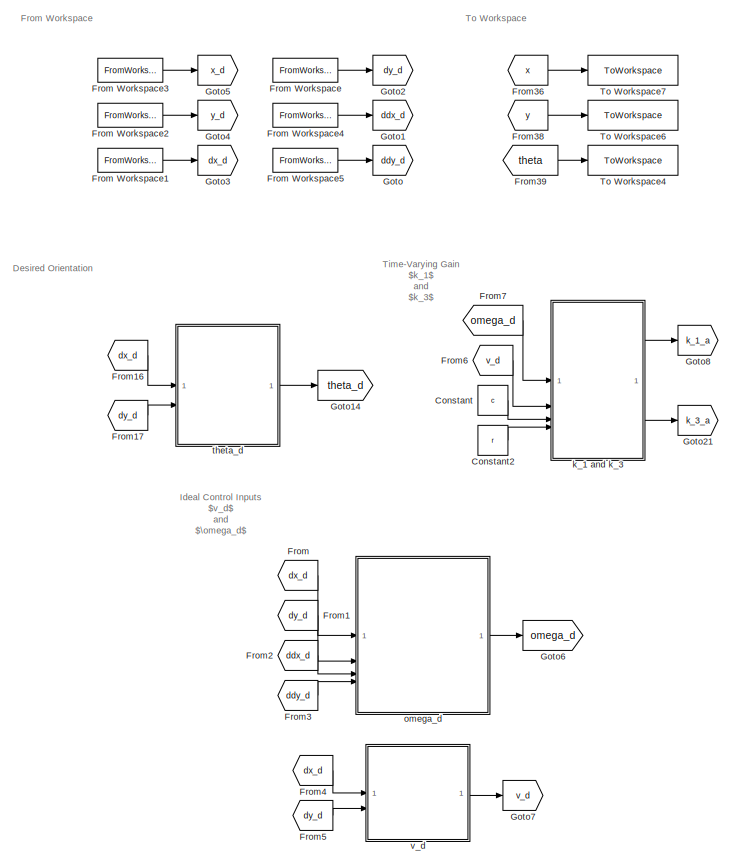
[diagram: root canvas - part 1/2, left side, full height]
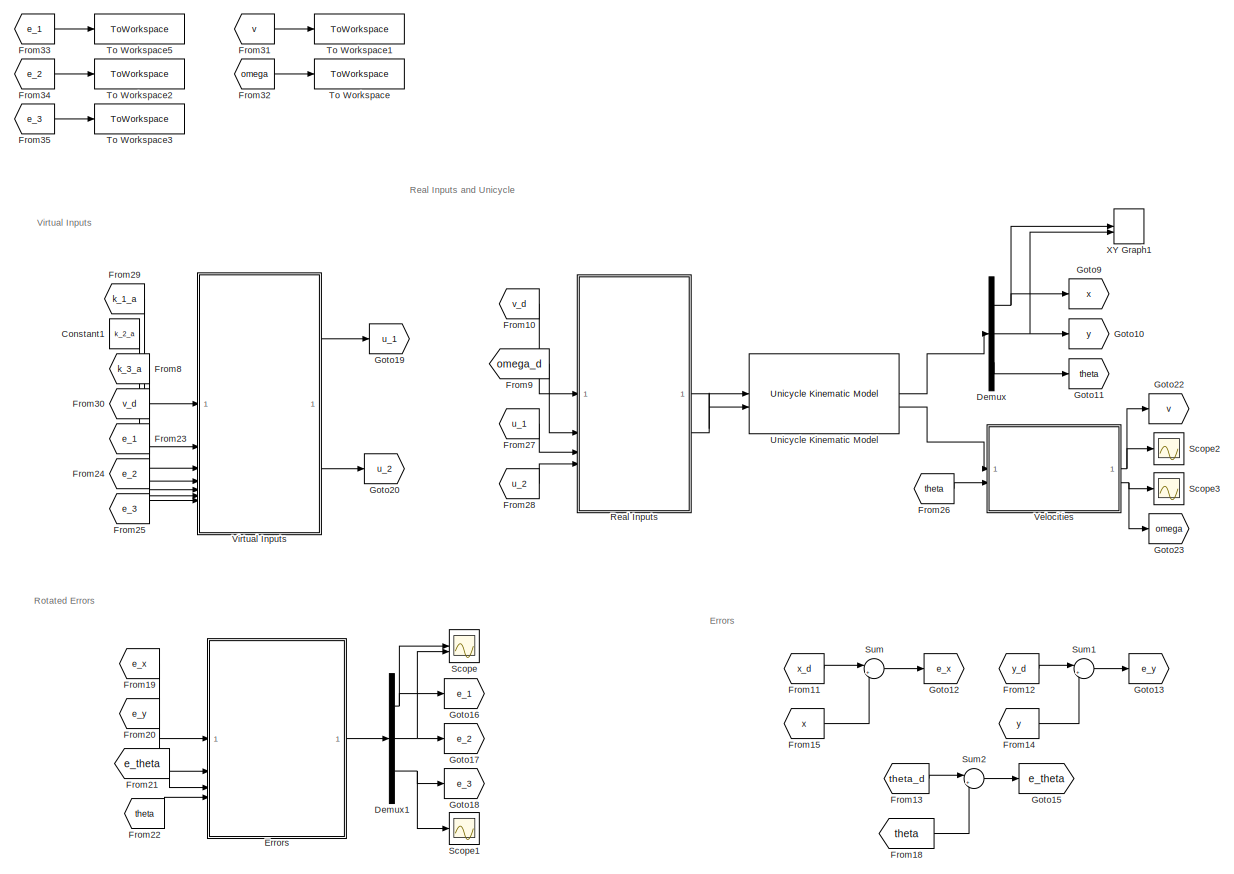
[diagram: root canvas - part 2/2, right side, full height]
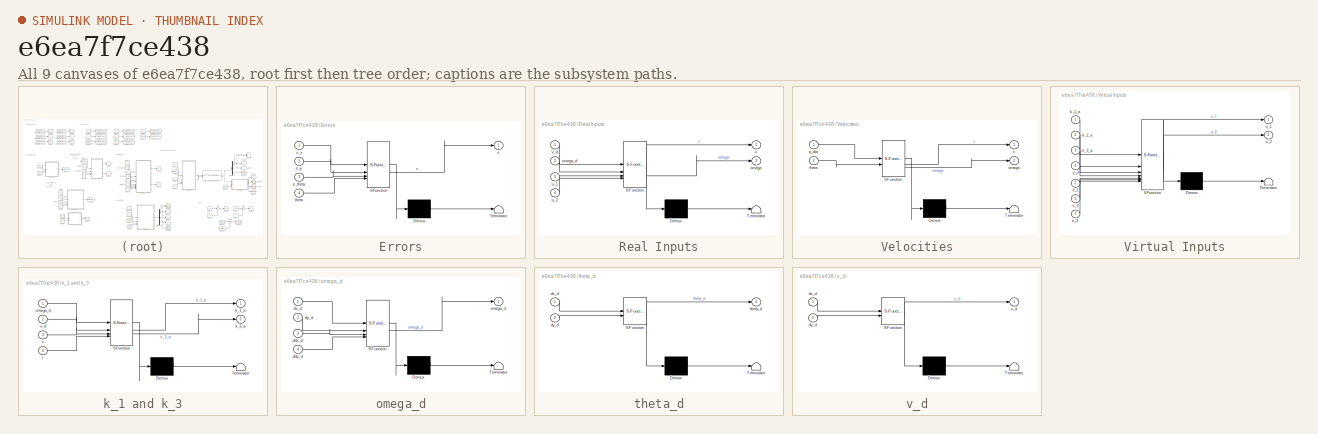
[diagram: thumbnail index - all 9 canvases of the model, root first then tree order]
MODEL slx_e6ea7f7ce438
KIND model
CONFIG AbsTol = auto
CONFIG EnableMultiTasking = off
CONFIG FixedStep = 0.001
CONFIG MaxStep = auto
CONFIG MinStep = auto
CONFIG RelTol = 1e-5
CONFIG SampleTimeConstraint = Unconstrained
CONFIG SolverName = ode23
CONFIG StartTime = 0.0
CONFIG StopTime = T
BLOCK [Constant] Constant
  Value = c
BLOCK [Constant] Constant1
  Value = k_2_a
BLOCK [Constant] Constant2
  Value = r
BLOCK [Demux] Demux
  Outputs = 3
BLOCK [Demux] Demux1
  Outputs = 3
BLOCK [SubSystem] Errors
  ErrorFcn = Stateflow.Translate.translate
  PermitHierarchicalResolution = ExplicitOnly
  SFBlockType = MATLAB Function
  TreatAsAtomicUnit = on
BLOCK [Demux] Errors/ Demux 
  Outputs = 1
BLOCK [S-Function] Errors/ SFunction 
  EnableBusSupport = on
  FunctionName = sf_sfun
  PortCounts = [4 2]
  SFcnIsStateOwnerBlock = off
  SFunctionDeploymentMode = off
  Tag = Stateflow S-Function 7
BLOCK [Terminator] Errors/ Terminator 
BLOCK [Outport] Errors/e
BLOCK [Inport] Errors/e_theta
  Port = 3
BLOCK [Inport] Errors/e_x
BLOCK [Inport] Errors/e_y
  Port = 2
BLOCK [Inport] Errors/theta
  Port = 4
BLOCK [From] From
  GotoTag = dx_d
BLOCK [FromWorkspace] From Workspace
  VariableName = dy_d
BLOCK [FromWorkspace] From Workspace1
  VariableName = dx_d
BLOCK [FromWorkspace] From Workspace2
  VariableName = y_d
BLOCK [FromWorkspace] From Workspace3
  VariableName = x_d
BLOCK [FromWorkspace] From Workspace4
  VariableName = ddx_d
BLOCK [FromWorkspace] From Workspace5
  VariableName = ddy_d
BLOCK [From] From1
  GotoTag = dy_d
BLOCK [From] From10
  GotoTag = v_d
BLOCK [From] From11
  GotoTag = x_d
BLOCK [From] From12
  GotoTag = y_d
BLOCK [From] From13
  GotoTag = theta_d
BLOCK [From] From14
  GotoTag = y
BLOCK [From] From15
  GotoTag = x
BLOCK [From] From16
  GotoTag = dx_d
BLOCK [From] From17
  GotoTag = dy_d
BLOCK [From] From18
  GotoTag = theta
BLOCK [From] From19
  GotoTag = e_x
BLOCK [From] From2
  GotoTag = ddx_d
BLOCK [From] From20
  GotoTag = e_y
BLOCK [From] From21
  GotoTag = e_theta
BLOCK [From] From22
  GotoTag = theta
BLOCK [From] From23
  GotoTag = e_1
BLOCK [From] From24
  GotoTag = e_2
BLOCK [From] From25
  GotoTag = e_3
BLOCK [From] From26
  GotoTag = theta
BLOCK [From] From27
  GotoTag = u_1
BLOCK [From] From28
  GotoTag = u_2
BLOCK [From] From29
  GotoTag = k_1_a
BLOCK [From] From3
  GotoTag = ddy_d
BLOCK [From] From30
  GotoTag = v_d
BLOCK [From] From31
  GotoTag = v
BLOCK [From] From32
  GotoTag = omega
BLOCK [From] From33
  GotoTag = e_1
BLOCK [From] From34
  GotoTag = e_2
BLOCK [From] From35
  GotoTag = e_3
BLOCK [From] From36
  GotoTag = x
BLOCK [From] From38
  GotoTag = y
BLOCK [From] From39
  GotoTag = theta
BLOCK [From] From4
  GotoTag = dx_d
BLOCK [From] From5
  GotoTag = dy_d
BLOCK [From] From6
  GotoTag = v_d
BLOCK [From] From7
  GotoTag = omega_d
BLOCK [From] From8
  GotoTag = k_3_a
BLOCK [From] From9
  GotoTag = omega_d
BLOCK [Goto] Goto
  GotoTag = ddy_d
BLOCK [Goto] Goto1
  GotoTag = ddx_d
BLOCK [Goto] Goto10
  GotoTag = y
BLOCK [Goto] Goto11
  GotoTag = theta
BLOCK [Goto] Goto12
  GotoTag = e_x
BLOCK [Goto] Goto13
  GotoTag = e_y
BLOCK [Goto] Goto14
  GotoTag = theta_d
BLOCK [Goto] Goto15
  GotoTag = e_theta
BLOCK [Goto] Goto16
  GotoTag = e_1
BLOCK [Goto] Goto17
  GotoTag = e_2
BLOCK [Goto] Goto18
  GotoTag = e_3
BLOCK [Goto] Goto19
  GotoTag = u_1
BLOCK [Goto] Goto2
  GotoTag = dy_d
BLOCK [Goto] Goto20
  GotoTag = u_2
BLOCK [Goto] Goto21
  GotoTag = k_3_a
BLOCK [Goto] Goto22
  GotoTag = v
BLOCK [Goto] Goto23
  GotoTag = omega
BLOCK [Goto] Goto3
  GotoTag = dx_d
BLOCK [Goto] Goto4
  GotoTag = y_d
BLOCK [Goto] Goto5
  GotoTag = x_d
BLOCK [Goto] Goto6
  GotoTag = omega_d
BLOCK [Goto] Goto7
  GotoTag = v_d
BLOCK [Goto] Goto8
  GotoTag = k_1_a
BLOCK [Goto] Goto9
  GotoTag = x
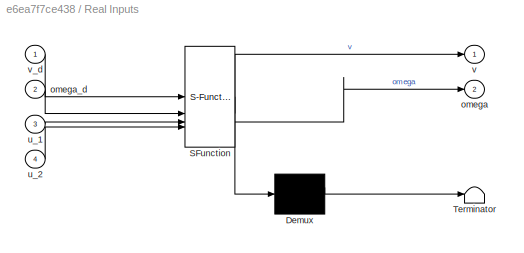
BLOCK [SubSystem] Real Inputs
  ErrorFcn = Stateflow.Translate.translate
  PermitHierarchicalResolution = ExplicitOnly
  SFBlockType = MATLAB Function
  TreatAsAtomicUnit = on
BLOCK [Demux] Real Inputs/ Demux 
  Outputs = 1
BLOCK [S-Function] Real Inputs/ SFunction 
  EnableBusSupport = on
  FunctionName = sf_sfun
  PortCounts = [4 3]
  SFcnIsStateOwnerBlock = off
  SFunctionDeploymentMode = off
  Tag = Stateflow S-Function 5
BLOCK [Terminator] Real Inputs/ Terminator 
BLOCK [Outport] Real Inputs/omega
  Port = 2
BLOCK [Inport] Real Inputs/omega_d
  Port = 2
BLOCK [Inport] Real Inputs/u_1
  Port = 3
BLOCK [Inport] Real Inputs/u_2
  Port = 4
BLOCK [Outport] Real Inputs/v
BLOCK [Inport] Real Inputs/v_d
BLOCK [Scope] Scope
  Floating = off
  NumInputPorts = 2
  ScopeSpecificationString = Simulink.scopes.TimeScopeBlockCfg('CurrentConfiguration', extmgr.ConfigurationSet(extmgr.Configuration('Core','General UI',true),extmgr.Configuration('Core','Source UI',true),extmgr.Configuration('Sources','WiredSimulink',true,'DataLoggingVariableName','ScopeData1'),extmgr.Configuration('Visuals','Time Domain',true),extmgr.Configuration('Tools','Plot Navigation',true),extmgr.Configuration('Tools',...<+40ch>
BLOCK [Scope] Scope1
  Floating = off
  NumInputPorts = 1
  ScopeSpecificationString = Simulink.scopes.TimeScopeBlockCfg('CurrentConfiguration', extmgr.ConfigurationSet(extmgr.Configuration('Core','General UI',true),extmgr.Configuration('Core','Source UI',true),extmgr.Configuration('Sources','WiredSimulink',true,'DataLoggingVariableName','ScopeData2'),extmgr.Configuration('Visuals','Time Domain',true),extmgr.Configuration('Tools','Plot Navigation',true),extmgr.Configuration('Tools',...<+40ch>
BLOCK [Scope] Scope2
  Floating = off
  NumInputPorts = 1
  ScopeSpecificationString = Simulink.scopes.TimeScopeBlockCfg('CurrentConfiguration', extmgr.ConfigurationSet(extmgr.Configuration('Core','General UI',true),extmgr.Configuration('Core','Source UI',true),extmgr.Configuration('Sources','WiredSimulink',true,'DataLoggingVariableName','ScopeData1'),extmgr.Configuration('Visuals','Time Domain',true,'SerializedDisplays',{struct('MinYLimReal','-36.51076','MaxYLimReal','24.62774','YL...<+1454ch>
BLOCK [Scope] Scope3
  Floating = off
  NumInputPorts = 1
  ScopeSpecificationString = Simulink.scopes.TimeScopeBlockCfg('CurrentConfiguration', extmgr.ConfigurationSet(extmgr.Configuration('Core','General UI',true),extmgr.Configuration('Core','Source UI',true),extmgr.Configuration('Sources','WiredSimulink',true),extmgr.Configuration('Visuals','Time Domain',true,'SerializedDisplays',{struct('MinYLimReal','-20132.71573','MaxYLimReal','20143.78087','YLabelReal','','MinYLimMag','   0.0...<+1410ch>
BLOCK [Sum] Sum
  Inputs = |+-
BLOCK [Sum] Sum1
  Inputs = |+-
BLOCK [Sum] Sum2
  Inputs = |+-
BLOCK [ToWorkspace] To Workspace
  FixptAsFi = on
  MaxDataPoints = inf
  SampleTime = -1
  SaveFormat = Timeseries
  VariableName = omega_almost_nl
BLOCK [ToWorkspace] To Workspace1
  FixptAsFi = on
  MaxDataPoints = inf
  SampleTime = -1
  SaveFormat = Timeseries
  VariableName = v_almost_nl
BLOCK [ToWorkspace] To Workspace2
  FixptAsFi = on
  MaxDataPoints = inf
  SampleTime = -1
  SaveFormat = Timeseries
  VariableName = e_2_almost_nl
BLOCK [ToWorkspace] To Workspace3
  FixptAsFi = on
  MaxDataPoints = inf
  SampleTime = -1
  SaveFormat = Timeseries
  VariableName = e_3_almost_nl
BLOCK [ToWorkspace] To Workspace4
  FixptAsFi = on
  MaxDataPoints = inf
  SampleTime = -1
  SaveFormat = Timeseries
  VariableName = theta_almost_nl
BLOCK [ToWorkspace] To Workspace5
  FixptAsFi = on
  MaxDataPoints = inf
  SampleTime = -1
  SaveFormat = Timeseries
  VariableName = e_1_almost_nl
BLOCK [ToWorkspace] To Workspace6
  FixptAsFi = on
  MaxDataPoints = inf
  SampleTime = -1
  SaveFormat = Timeseries
  VariableName = y_almost_nl
BLOCK [ToWorkspace] To Workspace7
  FixptAsFi = on
  MaxDataPoints = inf
  SampleTime = -1
  SaveFormat = Timeseries
  VariableName = x_almost_nl
BLOCK [Reference] Unicycle Kinematic Model  REF=robotmobilelib/Unicycle Kinematic Model
  SourceBlock = robotmobilelib/Unicycle Kinematic Model
  SourceType = Unicycle Kinematic Model
BLOCK [SubSystem] Velocities
  ErrorFcn = Stateflow.Translate.translate
  PermitHierarchicalResolution = ExplicitOnly
  SFBlockType = MATLAB Function
  TreatAsAtomicUnit = on
BLOCK [Demux] Velocities/ Demux 
  Outputs = 1
BLOCK [S-Function] Velocities/ SFunction 
  EnableBusSupport = on
  FunctionName = sf_sfun
  PortCounts = [2 3]
  SFcnIsStateOwnerBlock = off
  SFunctionDeploymentMode = off
  Tag = Stateflow S-Function 8
BLOCK [Terminator] Velocities/ Terminator 
BLOCK [Outport] Velocities/omega
  Port = 2
BLOCK [Inport] Velocities/q_dot
BLOCK [Inport] Velocities/theta
  Port = 2
BLOCK [Outport] Velocities/v
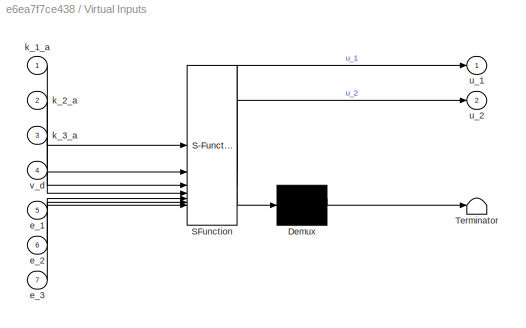
BLOCK [SubSystem] Virtual Inputs
  ErrorFcn = Stateflow.Translate.translate
  PermitHierarchicalResolution = ExplicitOnly
  SFBlockType = MATLAB Function
  TreatAsAtomicUnit = on
BLOCK [Demux] Virtual Inputs/ Demux 
  Outputs = 1
BLOCK [S-Function] Virtual Inputs/ SFunction 
  EnableBusSupport = on
  FunctionName = sf_sfun
  PortCounts = [7 3]
  SFcnIsStateOwnerBlock = off
  SFunctionDeploymentMode = off
  Tag = Stateflow S-Function 2
BLOCK [Terminator] Virtual Inputs/ Terminator 
BLOCK [Inport] Virtual Inputs/e_1
  Port = 5
BLOCK [Inport] Virtual Inputs/e_2
  Port = 6
BLOCK [Inport] Virtual Inputs/e_3
  Port = 7
BLOCK [Inport] Virtual Inputs/k_1_a
BLOCK [Inport] Virtual Inputs/k_2_a
  Port = 2
BLOCK [Inport] Virtual Inputs/k_3_a
  Port = 3
BLOCK [Outport] Virtual Inputs/u_1
BLOCK [Outport] Virtual Inputs/u_2
  Port = 2
BLOCK [Inport] Virtual Inputs/v_d
  Port = 4
BLOCK [Record] XY Graph1
  CompatibilityTag = XY
  FileSettingsInternal = {"entries":[{"content":{"excelSettings":{"content":{},"type":"Streamout.ExcelSettings"}},"type":"Streamout.FileSettingStorage","uuid":""}],"packageUris":["http:\/\/schema.mathworks.com\/mf0\/streamout_blocks\/R2020a"],"version":"1.0"}
  Layout = [1 1]
  SignalsInternal = {"entries":[{"content":{"signals":[{"content":{"blockPath":[],"dimensions":[1],"domain":"","lineColor":"#77ac30","plots":[1],"port":1,"sid":[""],"signalID":6338,"signalName":"Demux:1"},"type":"RecordBlkView.Signal","uuid":""},{"content":{"blockPath":[],"dimensions":[1],"domain":"","lineColor":"#4dbeee","plots":[1],"port":2,"sid":[""],"signalID":6342,"signalName":"Demux:2"},"type":"RecordBlkView.Si...<+162ch>
  VisualizationBindings = {"xyplotplugin":{"info":[{"series":[{"bindingParametersList":[{"parameter":"X-Axis","signalID":6338,"signalName":"Demux:1"},{"parameter":"Y-Axis","signalID":6342,"signalName":"Demux:2"}],"seriesID":27378}],"subplotID":1}]}}
  st = -1
BLOCK [SubSystem] k_1 and k_3
  ErrorFcn = Stateflow.Translate.translate
  PermitHierarchicalResolution = ExplicitOnly
  SFBlockType = MATLAB Function
  TreatAsAtomicUnit = on
BLOCK [Demux] k_1 and k_3/ Demux 
  Outputs = 1
BLOCK [S-Function] k_1 and k_3/ SFunction 
  EnableBusSupport = on
  FunctionName = sf_sfun
  PortCounts = [4 3]
  SFcnIsStateOwnerBlock = off
  SFunctionDeploymentMode = off
  Tag = Stateflow S-Function 3
BLOCK [Terminator] k_1 and k_3/ Terminator 
BLOCK [Inport] k_1 and k_3/c
  Port = 3
BLOCK [Outport] k_1 and k_3/k_1_a
BLOCK [Outport] k_1 and k_3/k_3_a
  Port = 2
BLOCK [Inport] k_1 and k_3/omega_d
BLOCK [Inport] k_1 and k_3/r
  Port = 4
BLOCK [Inport] k_1 and k_3/v_d
  Port = 2
BLOCK [SubSystem] omega_d
  ErrorFcn = Stateflow.Translate.translate
  PermitHierarchicalResolution = ExplicitOnly
  SFBlockType = MATLAB Function
  TreatAsAtomicUnit = on
BLOCK [Demux] omega_d/ Demux 
  Outputs = 1
BLOCK [S-Function] omega_d/ SFunction 
  EnableBusSupport = on
  FunctionName = sf_sfun
  PortCounts = [4 2]
  SFcnIsStateOwnerBlock = off
  SFunctionDeploymentMode = off
  Tag = Stateflow S-Function 1
BLOCK [Terminator] omega_d/ Terminator 
BLOCK [Inport] omega_d/ddx_d
  Port = 3
BLOCK [Inport] omega_d/ddy_d
  Port = 4
BLOCK [Inport] omega_d/dx_d
BLOCK [Inport] omega_d/dy_d
  Port = 2
BLOCK [Outport] omega_d/omega_d
BLOCK [SubSystem] theta_d
  ErrorFcn = Stateflow.Translate.translate
  PermitHierarchicalResolution = ExplicitOnly
  SFBlockType = MATLAB Function
  TreatAsAtomicUnit = on
BLOCK [Demux] theta_d/ Demux 
  Outputs = 1
BLOCK [S-Function] theta_d/ SFunction 
  EnableBusSupport = on
  FunctionName = sf_sfun
  PortCounts = [2 2]
  SFcnIsStateOwnerBlock = off
  SFunctionDeploymentMode = off
  Tag = Stateflow S-Function 6
BLOCK [Terminator] theta_d/ Terminator 
BLOCK [Inport] theta_d/dx_d
BLOCK [Inport] theta_d/dy_d
  Port = 2
BLOCK [Outport] theta_d/theta_d
BLOCK [SubSystem] v_d
  ErrorFcn = Stateflow.Translate.translate
  PermitHierarchicalResolution = ExplicitOnly
  SFBlockType = MATLAB Function
  TreatAsAtomicUnit = on
BLOCK [Demux] v_d/ Demux 
  Outputs = 1
BLOCK [S-Function] v_d/ SFunction 
  EnableBusSupport = on
  FunctionName = sf_sfun
  PortCounts = [2 2]
  SFcnIsStateOwnerBlock = off
  SFunctionDeploymentMode = off
  Tag = Stateflow S-Function 4
BLOCK [Terminator] v_d/ Terminator 
BLOCK [Inport] v_d/dx_d
BLOCK [Inport] v_d/dy_d
  Port = 2
BLOCK [Outport] v_d/v_d
ANNOTATION (root): Desired Orientation
ANNOTATION (root): Errors
ANNOTATION (root): From Workspace
ANNOTATION (root): Real Inputs and Unicycle
ANNOTATION (root): Rotated Errors
ANNOTATION (root): To Workspace
ANNOTATION (root): Virtual Inputs
ANNOTATION (root): Time-Varying Gain $k_1$ and $k_3$
ANNOTATION (root): Ideal Control Inputs $v_d$ and $\omega_d$
LINE Constant1:1 -> Virtual Inputs:2
LINE Constant2:1 -> k_1 and k_3:4
LINE Constant:1 -> k_1 and k_3:3
NET Demux1:1 -> Goto16:1, Scope:1
NET Demux1:2 -> Goto17:1, Scope:2
NET Demux1:3 -> Goto18:1, Scope1:1
NET Demux:1 -> Goto9:1, XY Graph1:1
NET Demux:2 -> Goto10:1, XY Graph1:2
LINE Demux:3 -> Goto11:1
LINE Errors:1 -> Demux1:1
LINE From Workspace1:1 -> Goto3:1
LINE From Workspace2:1 -> Goto4:1
LINE From Workspace3:1 -> Goto5:1
LINE From Workspace4:1 -> Goto1:1
LINE From Workspace5:1 -> Goto:1
LINE From Workspace:1 -> Goto2:1
LINE From10:1 -> Real Inputs:1
LINE From11:1 -> Sum:1
LINE From12:1 -> Sum1:1
LINE From13:1 -> Sum2:1
LINE From14:1 -> Sum1:2
LINE From15:1 -> Sum:2
LINE From16:1 -> theta_d:1
LINE From17:1 -> theta_d:2
LINE From18:1 -> Sum2:2
LINE From19:1 -> Errors:1
LINE From1:1 -> omega_d:2
LINE From20:1 -> Errors:2
LINE From21:1 -> Errors:3
LINE From22:1 -> Errors:4
LINE From23:1 -> Virtual Inputs:5
LINE From24:1 -> Virtual Inputs:6
LINE From25:1 -> Virtual Inputs:7
LINE From26:1 -> Velocities:2
LINE From27:1 -> Real Inputs:3
LINE From28:1 -> Real Inputs:4
LINE From29:1 -> Virtual Inputs:1
LINE From2:1 -> omega_d:3
LINE From30:1 -> Virtual Inputs:4
LINE From31:1 -> To Workspace1:1
LINE From32:1 -> To Workspace:1
LINE From33:1 -> To Workspace5:1
LINE From34:1 -> To Workspace2:1
LINE From35:1 -> To Workspace3:1
LINE From36:1 -> To Workspace7:1
LINE From38:1 -> To Workspace6:1
LINE From39:1 -> To Workspace4:1
LINE From3:1 -> omega_d:4
LINE From4:1 -> v_d:1
LINE From5:1 -> v_d:2
LINE From6:1 -> k_1 and k_3:2
LINE From7:1 -> k_1 and k_3:1
LINE From8:1 -> Virtual Inputs:3
LINE From9:1 -> Real Inputs:2
LINE From:1 -> omega_d:1
LINE Real Inputs:1 -> Unicycle Kinematic Model:1
LINE Real Inputs:2 -> Unicycle Kinematic Model:2
LINE Sum1:1 -> Goto13:1
LINE Sum2:1 -> Goto15:1
LINE Sum:1 -> Goto12:1
LINE Unicycle Kinematic Model:1 -> Demux:1
LINE Unicycle Kinematic Model:2 -> Velocities:1
NET Velocities:1 -> Goto22:1, Scope2:1
NET Velocities:2 -> Goto23:1, Scope3:1
LINE Virtual Inputs:1 -> Goto19:1
LINE Virtual Inputs:2 -> Goto20:1
LINE k_1 and k_3:1 -> Goto8:1
LINE k_1 and k_3:2 -> Goto21:1
LINE omega_d:1 -> Goto6:1
LINE theta_d:1 -> Goto14:1
LINE v_d:1 -> Goto7:1
note: NET lines group one-source signal fan-out (src -> all destinations, sorted); 1:1 wires keep LINE
CHART omega_d states=1 transitions=1
  STATE_LABEL 'eML_blk_kernel()'
  STATE_LABEL 'SCRIPT:\nfunction omega_d  = omega_d(dx_d, dy_d, ddx_d, ddy_d)\n\nomega_d = (ddy_d.*dx_d - ddx_d.*dy_d)./(dx_d.^2 + dy_d.^2);\n'
CHART Virtual Inputs states=1 transitions=1
  STATE_LABEL 'eML_blk_kernel()'
  STATE_LABEL 'SCRIPT:\nfunction [u_1, u_2] = virtual_inputs(k_1_a, k_2_a, k_3_a, v_d, e_1, e_2, e_3)\n\nu_1 = -k_1_a*e_1;\nu_2 = -k_2_a*v_d*(sin(e_3)/e_3)*e_2 - k_3_a*e_3;'
CHART k_1 and k_3 states=1 transitions=1
  STATE_LABEL 'eML_blk_kernel()'
  STATE_LABEL 'SCRIPT:\nfunction [k_1_a, k_3_a] = k_1_3_a(omega_d, v_d, c, r)\n\n%k_1_a = (c^2 - omega_d)/v_d;\n%k_3_a = k_1_a;\n\nk_1_a = r^2*c^2*sqrt(v_d^2 + omega_d^2)/v_d^2;\nk_3_a = k_1_a;\n'
CHART v_d states=1 transitions=1
  STATE_LABEL 'eML_blk_kernel()'
  STATE_LABEL 'SCRIPT:\nfunction v_d = v_d(dx_d, dy_d)\n\nv_d = sqrt(dx_d^2 + dy_d^2);\n'
CHART Real Inputs states=1 transitions=1
  STATE_LABEL 'eML_blk_kernel()'
  STATE_LABEL 'SCRIPT:\nfunction [v, omega] = real_inputs(v_d, omega_d, u_1, u_2)\n\nv = v_d - u_1;\nomega = omega_d - u_2;\n'
CHART theta_d states=1 transitions=1
  STATE_LABEL 'eML_blk_kernel()'
  STATE_LABEL 'SCRIPT:\nfunction theta_d = theta_d(dx_d, dy_d)\n\ntheta_d = atan2(dy_d, dx_d);\n'
CHART Errors states=1 transitions=1
  STATE_LABEL 'eML_blk_kernel()'
  STATE_LABEL 'SCRIPT:\nfunction e = errors(e_x, e_y, e_theta, theta)\n\nR = [cos(theta) sin(theta) 0; \n    -sin(theta) cos(theta) 0;\n    0 0 1];\n\ne = R*[e_x; e_y; e_theta];\n'
CHART Velocities states=1 transitions=1
  STATE_LABEL 'eML_blk_kernel()'
  STATE_LABEL 'SCRIPT:\nfunction [v, omega] = velocities(q_dot, theta)\n\nv = q_dot(1)/cos(theta);\nomega = q_dot(3);'
CHART  states=0 transitions=0
CHART  states=0 transitions=0
CHART  states=0 transitions=0
CHART  states=0 transitions=0
CHART  states=0 transitions=0
CHART  states=0 transitions=0
CHART  states=0 transitions=0
CHART  states=0 transitions=0
